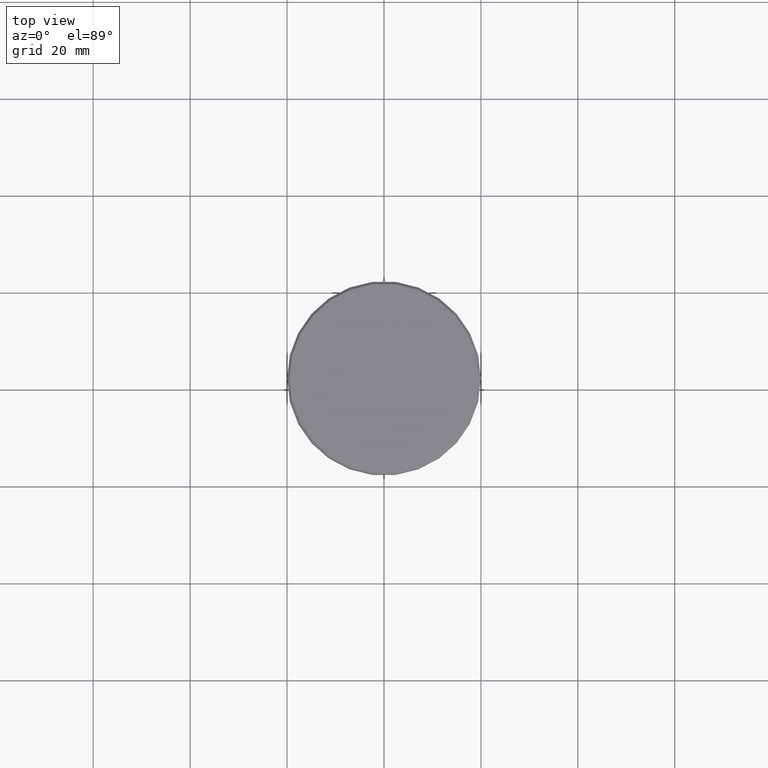
[diagram: clean part render]
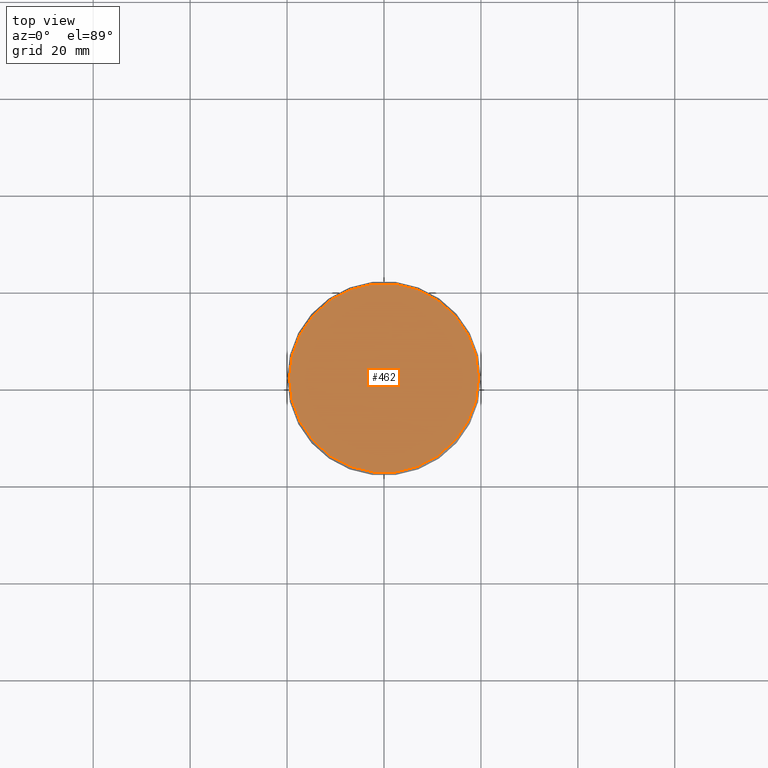
[diagram: same view with one face highlighted and labeled with its STEP entity id]
A machine part, top view. The second image highlights one B-rep face of the part: STEP entity #462.
In plain terms, the highlighted planar face has unit normal (0, -0, 1).
Its self-contained STEP definition (entity closure, byte-faithful):
#5 = DIRECTION ( 'NONE',  ( -0.000000000000000000, -0.000000000000000000, 1.000000000000000000 ) ) ;
#85 = DIRECTION ( 'NONE',  ( 1.000000000000000000, 0.000000000000000000, 0.000000000000000000 ) ) ;
#104 = CIRCLE ( 'NONE', #643, 19.49999999999998934 ) ;
#113 = VERTEX_POINT ( 'NONE', #861 ) ;
#168 = ORIENTED_EDGE ( 'NONE', *, *, #728, .T. ) ;
#237 = CIRCLE ( 'NONE', #452, 19.49999999999998934 ) ;
#311 = VERTEX_POINT ( 'NONE', #719 ) ;
#339 = ORIENTED_EDGE ( 'NONE', *, *, #772, .T. ) ;
#452 = AXIS2_PLACEMENT_3D ( 'NONE', #1182, #470, #839 ) ;
#456 = EDGE_LOOP ( 'NONE', ( #168, #339 ) ) ;
#462 = ADVANCED_FACE ( 'NONE', ( #1088 ), #1024, .T. ) ;
#463 = DIRECTION ( 'NONE',  ( 1.000000000000000000, 0.000000000000000000, 0.000000000000000000 ) ) ;
#470 = DIRECTION ( 'NONE',  ( -0.000000000000000000, -0.000000000000000000, 1.000000000000000000 ) ) ;
#578 = CARTESIAN_POINT ( 'NONE',  ( 0.000000000000000000, 0.000000000000000000, 0.000000000000000000 ) ) ;
#643 = AXIS2_PLACEMENT_3D ( 'NONE', #1097, #5, #85 ) ;
#719 = CARTESIAN_POINT ( 'NONE',  ( -19.49999999999998934, 0.000000000000000000, 0.000000000000000000 ) ) ;
#728 = EDGE_CURVE ( 'NONE', #311, #113, #104, .T. ) ;
#729 = DIRECTION ( 'NONE',  ( 0.000000000000000000, -0.000000000000000000, 1.000000000000000000 ) ) ;
#750 = AXIS2_PLACEMENT_3D ( 'NONE', #578, #729, #463 ) ;
#772 = EDGE_CURVE ( 'NONE', #113, #311, #237, .T. ) ;
#839 = DIRECTION ( 'NONE',  ( 1.000000000000000000, 0.000000000000000000, 0.000000000000000000 ) ) ;
#861 = CARTESIAN_POINT ( 'NONE',  ( 19.49999999999998934, 2.418677428316021937E-15, 0.000000000000000000 ) ) ;
#1024 = PLANE ( 'NONE',  #750 ) ;
#1088 = FACE_OUTER_BOUND ( 'NONE', #456, .T. ) ;
#1097 = CARTESIAN_POINT ( 'NONE',  ( 0.000000000000000000, 0.000000000000000000, 0.000000000000000000 ) ) ;
#1182 = CARTESIAN_POINT ( 'NONE',  ( 0.000000000000000000, 0.000000000000000000, 0.000000000000000000 ) ) ;